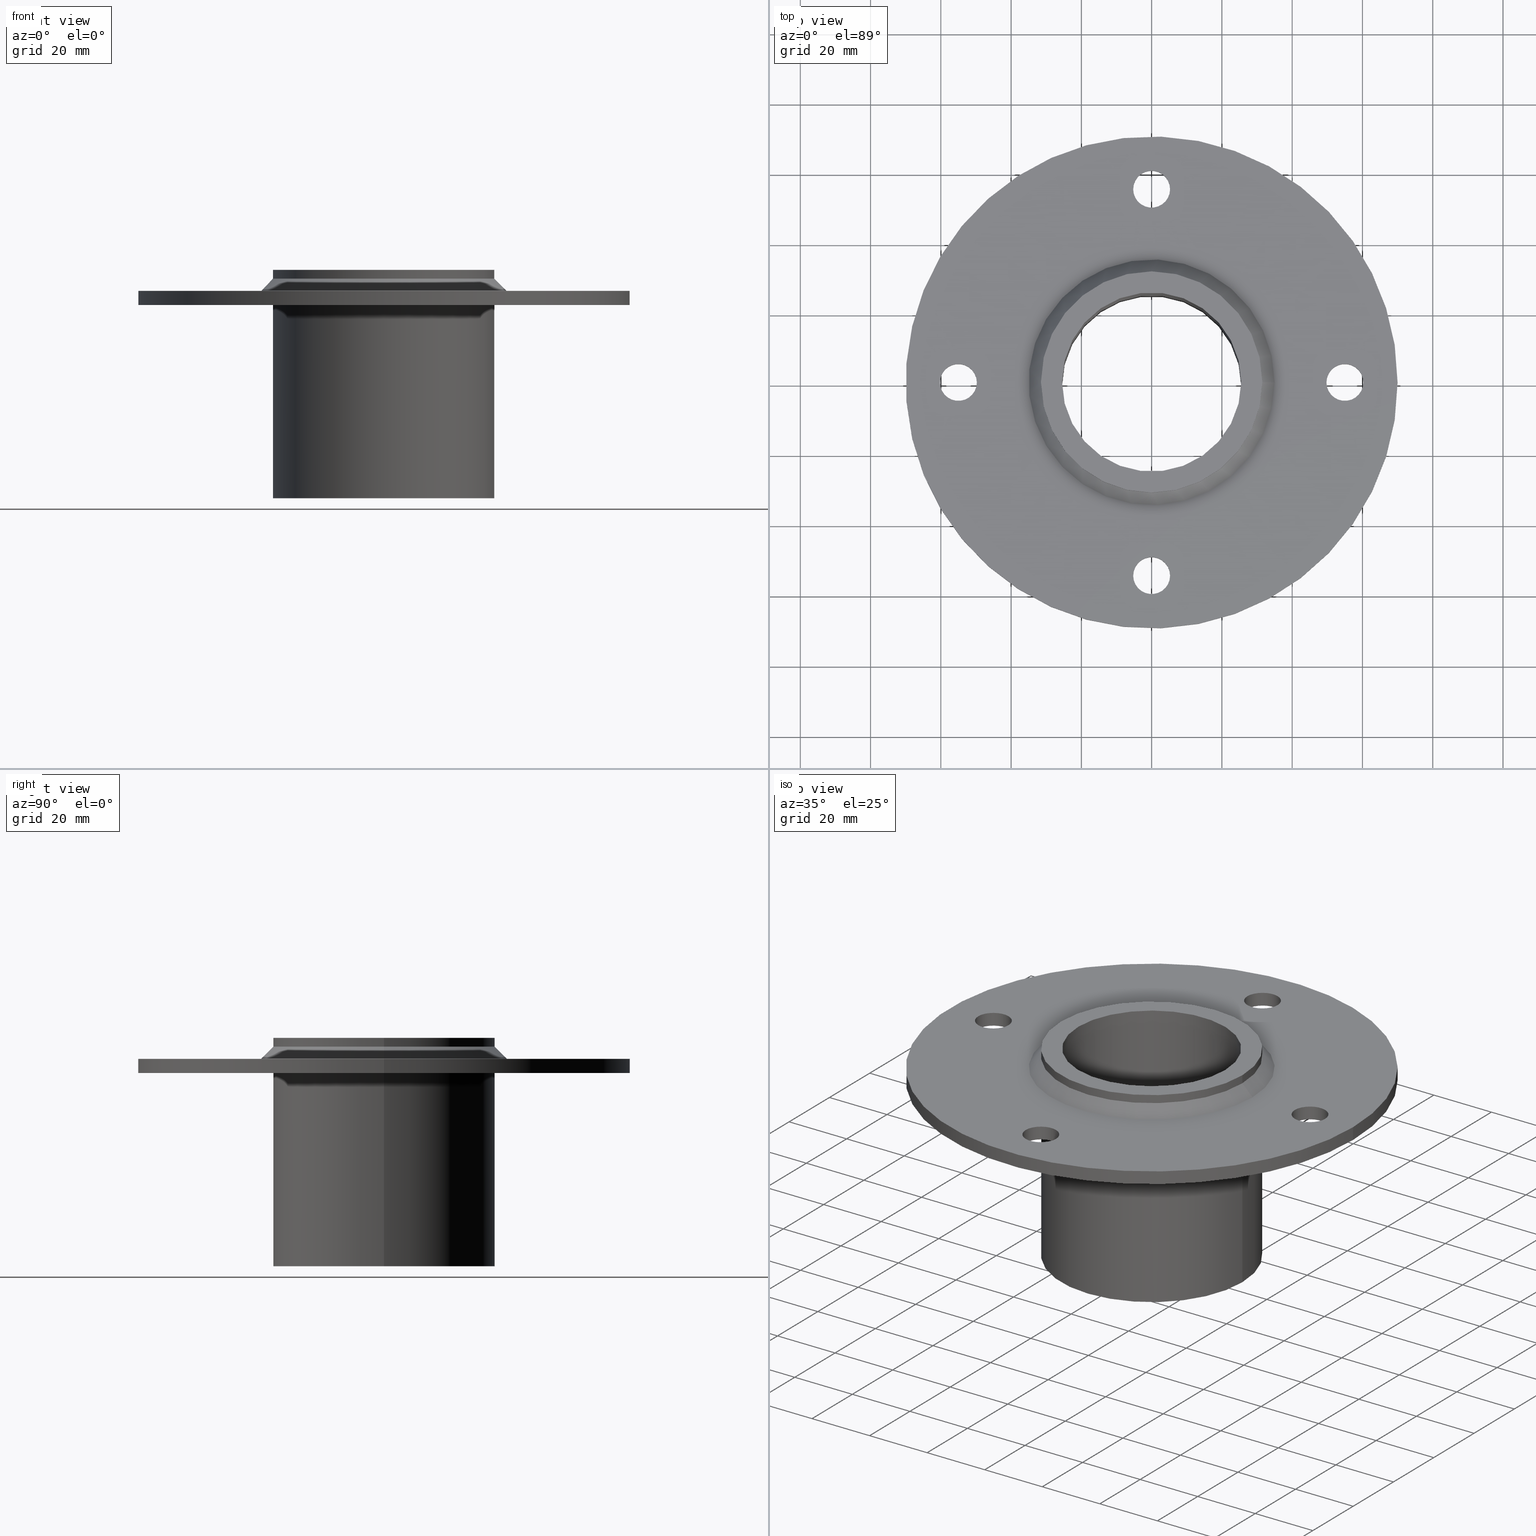
[diagram: canonical four-view strip — front | top / right | iso, engineering-drawing reading convention]
A machine part, canonical four-view strip (front | top / right | iso — engineering-drawing reading convention). The complete STEP part file that produces these views, byte-faithful:
ISO-10303-21;
HEADER;
/****************************************************************
 * Generated by software with PDElib inside                    *
 * PDElib Version v51a, created Wed 11/30/2011                  *
 * ITI Transcendata (http://www.transcendata.com/)              *
 ****************************************************************/
FILE_DESCRIPTION((''),'2;1');
FILE_NAME('C:\\Users\\se-mareng\\Desktop\\RTD\\SLF_\\step\\SLFRS50.stp','2017-02-08T07:25:08',('se-mareng'),(''),'Autodesk Inventor 2013','Autodesk Inventor 2013','');
FILE_SCHEMA(('AUTOMOTIVE_DESIGN { 1 0 10303 214 1 1 1 1 }'));
ENDSEC;
DATA;
#5=APPLICATION_CONTEXT('automotive design');
#6=APPLICATION_PROTOCOL_DEFINITION('International Standard','automotive_design',2001,#5);
#7=PRODUCT_CONTEXT('',#5,'mechanical');
#8=PRODUCT('SLFRS50_old','SLFRS50_old',$,(#7));
#9=PRODUCT_RELATED_PRODUCT_CATEGORY('part',$,(#8));
#10=PRODUCT_DEFINITION_FORMATION('',$,#8);
#11=PRODUCT_DEFINITION_CONTEXT('part definition',#5,'design');
#12=PRODUCT_DEFINITION('',$,#10,#11);
#18=(NAMED_UNIT(*)PLANE_ANGLE_UNIT()SI_UNIT($,.RADIAN.));
#19=DIMENSIONAL_EXPONENTS(0.0,0.0,0.0,0.0,0.0,0.0,0.0);
#20=PLANE_ANGLE_MEASURE_WITH_UNIT(PLANE_ANGLE_MEASURE(0.0174532925),#18);
#24=(CONVERSION_BASED_UNIT('DEGREE',#20)NAMED_UNIT(#19)PLANE_ANGLE_UNIT());
#28=(NAMED_UNIT(*)SI_UNIT($,.STERADIAN.)SOLID_ANGLE_UNIT());
#32=(LENGTH_UNIT()NAMED_UNIT(*)SI_UNIT(.MILLI.,.METRE.));
#34=UNCERTAINTY_MEASURE_WITH_UNIT(LENGTH_MEASURE(0.01),#32,'DISTANCE_ACCURACY_VALUE','');
#36=(GEOMETRIC_REPRESENTATION_CONTEXT(3)GLOBAL_UNCERTAINTY_ASSIGNED_CONTEXT((#34))GLOBAL_UNIT_ASSIGNED_CONTEXT((#24,#28,#32))REPRESENTATION_CONTEXT('None','None'));
#37=AXIS2_PLACEMENT_3D('',#38,#39,#40);
#38=CARTESIAN_POINT('',(0.0,0.0,0.0));
#39=DIRECTION('',(0.0,0.0,1.0));
#40=DIRECTION('',(1.0,0.0,0.0));
#41=SHAPE_REPRESENTATION('',(#37),#36);
#42=PRODUCT_DEFINITION_SHAPE('','',#12);
#43=SHAPE_DEFINITION_REPRESENTATION(#42,#41);
#49=(NAMED_UNIT(*)PLANE_ANGLE_UNIT()SI_UNIT($,.RADIAN.));
#50=DIMENSIONAL_EXPONENTS(0.0,0.0,0.0,0.0,0.0,0.0,0.0);
#51=PLANE_ANGLE_MEASURE_WITH_UNIT(PLANE_ANGLE_MEASURE(0.0174532925),#49);
#55=(CONVERSION_BASED_UNIT('DEGREE',#51)NAMED_UNIT(#50)PLANE_ANGLE_UNIT());
#59=(NAMED_UNIT(*)SI_UNIT($,.STERADIAN.)SOLID_ANGLE_UNIT());
#63=(LENGTH_UNIT()NAMED_UNIT(*)SI_UNIT(.MILLI.,.METRE.));
#65=UNCERTAINTY_MEASURE_WITH_UNIT(LENGTH_MEASURE(0.000001),#63,'DISTANCE_ACCURACY_VALUE','');
#67=(GEOMETRIC_REPRESENTATION_CONTEXT(3)GLOBAL_UNCERTAINTY_ASSIGNED_CONTEXT((#65))GLOBAL_UNIT_ASSIGNED_CONTEXT((#55,#59,#63))REPRESENTATION_CONTEXT('','3D'));
#68=CARTESIAN_POINT('',(-6.735557E-015,-55.0,-214.38665984174708));
#69=DIRECTION('',(0.0,0.0,1.0));
#70=DIRECTION('',(1.0,0.0,0.0));
#71=AXIS2_PLACEMENT_3D('',#68,#69,#70);
#72=CYLINDRICAL_SURFACE('',#71,5.25);
#73=CARTESIAN_POINT('',(-5.250000000000007,-55.0,-10.0));
#74=VERTEX_POINT('',#73);
#75=CARTESIAN_POINT('',(-6.735557E-015,-55.0,-10.0));
#76=DIRECTION('',(0.0,0.0,1.0));
#77=DIRECTION('',(1.0,0.0,0.0));
#78=AXIS2_PLACEMENT_3D('',#75,#76,#77);
#79=CIRCLE('',#78,5.25);
#80=EDGE_CURVE('',#74,#74,#79,.T.);
#81=ORIENTED_EDGE('',*,*,#80,.F.);
#82=EDGE_LOOP('',(#81));
#83=FACE_OUTER_BOUND('',#82,.T.);
#84=CARTESIAN_POINT('',(5.249999999999994,-55.0,-6.000000000000002));
#85=VERTEX_POINT('',#84);
#86=CARTESIAN_POINT('',(-6.735557E-015,-55.0,-6.000000000000014));
#87=DIRECTION('',(0.0,0.0,-1.0));
#88=DIRECTION('',(1.0,0.0,0.0));
#89=AXIS2_PLACEMENT_3D('',#86,#87,#88);
#90=CIRCLE('',#89,5.25);
#91=EDGE_CURVE('',#85,#85,#90,.T.);
#92=ORIENTED_EDGE('',*,*,#91,.F.);
#93=EDGE_LOOP('',(#92));
#94=FACE_BOUND('',#93,.T.);
#95=ADVANCED_FACE('',(#83,#94),#72,.F.);
#96=CARTESIAN_POINT('',(0.0,55.0,-214.38665984174708));
#97=DIRECTION('',(0.0,0.0,1.0));
#98=DIRECTION('',(1.0,0.0,0.0));
#99=AXIS2_PLACEMENT_3D('',#96,#97,#98);
#100=CYLINDRICAL_SURFACE('',#99,5.25);
#101=CARTESIAN_POINT('',(-5.25,55.0,-10.0));
#102=VERTEX_POINT('',#101);
#103=CARTESIAN_POINT('',(0.0,55.0,-10.0));
#104=DIRECTION('',(0.0,0.0,1.0));
#105=DIRECTION('',(1.0,0.0,0.0));
#106=AXIS2_PLACEMENT_3D('',#103,#104,#105);
#107=CIRCLE('',#106,5.25);
#108=EDGE_CURVE('',#102,#102,#107,.T.);
#109=ORIENTED_EDGE('',*,*,#108,.F.);
#110=EDGE_LOOP('',(#109));
#111=FACE_OUTER_BOUND('',#110,.T.);
#112=CARTESIAN_POINT('',(5.25,55.0,-6.000000000000002));
#113=VERTEX_POINT('',#112);
#114=CARTESIAN_POINT('',(0.0,55.0,-6.000000000000014));
#115=DIRECTION('',(0.0,0.0,-1.0));
#116=DIRECTION('',(1.0,0.0,0.0));
#117=AXIS2_PLACEMENT_3D('',#114,#115,#116);
#118=CIRCLE('',#117,5.25);
#119=EDGE_CURVE('',#113,#113,#118,.T.);
#120=ORIENTED_EDGE('',*,*,#119,.F.);
#121=EDGE_LOOP('',(#120));
#122=FACE_BOUND('',#121,.T.);
#123=ADVANCED_FACE('',(#111,#122),#100,.F.);
#124=CARTESIAN_POINT('',(55.0,-1.010334E-014,-214.38665984174708));
#125=DIRECTION('',(0.0,0.0,1.0));
#126=DIRECTION('',(1.0,0.0,0.0));
#127=AXIS2_PLACEMENT_3D('',#124,#125,#126);
#128=CYLINDRICAL_SURFACE('',#127,5.25);
#129=CARTESIAN_POINT('',(49.75,-1.074628E-014,-10.0));
#130=VERTEX_POINT('',#129);
#131=CARTESIAN_POINT('',(55.0,-1.010334E-014,-10.0));
#132=DIRECTION('',(0.0,0.0,1.0));
#133=DIRECTION('',(1.0,0.0,0.0));
#134=AXIS2_PLACEMENT_3D('',#131,#132,#133);
#135=CIRCLE('',#134,5.25);
#136=EDGE_CURVE('',#130,#130,#135,.T.);
#137=ORIENTED_EDGE('',*,*,#136,.F.);
#138=EDGE_LOOP('',(#137));
#139=FACE_OUTER_BOUND('',#138,.T.);
#140=CARTESIAN_POINT('',(60.25,-1.010334E-014,-6.000000000000002));
#141=VERTEX_POINT('',#140);
#142=CARTESIAN_POINT('',(55.0,-1.010334E-014,-6.000000000000014));
#143=DIRECTION('',(0.0,0.0,-1.0));
#144=DIRECTION('',(1.0,0.0,0.0));
#145=AXIS2_PLACEMENT_3D('',#142,#143,#144);
#146=CIRCLE('',#145,5.25);
#147=EDGE_CURVE('',#141,#141,#146,.T.);
#148=ORIENTED_EDGE('',*,*,#147,.F.);
#149=EDGE_LOOP('',(#148));
#150=FACE_BOUND('',#149,.T.);
#151=ADVANCED_FACE('',(#139,#150),#128,.F.);
#152=CARTESIAN_POINT('',(-55.0,3.367779E-015,-214.38665984174708));
#153=DIRECTION('',(0.0,0.0,1.0));
#154=DIRECTION('',(1.0,0.0,0.0));
#155=AXIS2_PLACEMENT_3D('',#152,#153,#154);
#156=CYLINDRICAL_SURFACE('',#155,5.25);
#157=CARTESIAN_POINT('',(-60.25,2.724839E-015,-10.0));
#158=VERTEX_POINT('',#157);
#159=CARTESIAN_POINT('',(-55.0,3.367779E-015,-10.0));
#160=DIRECTION('',(0.0,0.0,1.0));
#161=DIRECTION('',(1.0,0.0,0.0));
#162=AXIS2_PLACEMENT_3D('',#159,#160,#161);
#163=CIRCLE('',#162,5.25);
#164=EDGE_CURVE('',#158,#158,#163,.T.);
#165=ORIENTED_EDGE('',*,*,#164,.F.);
#166=EDGE_LOOP('',(#165));
#167=FACE_OUTER_BOUND('',#166,.T.);
#168=CARTESIAN_POINT('',(-49.75,3.367779E-015,-6.000000000000002));
#169=VERTEX_POINT('',#168);
#170=CARTESIAN_POINT('',(-55.0,3.367779E-015,-6.000000000000014));
#171=DIRECTION('',(0.0,0.0,-1.0));
#172=DIRECTION('',(1.0,0.0,0.0));
#173=AXIS2_PLACEMENT_3D('',#170,#171,#172);
#174=CIRCLE('',#173,5.25);
#175=EDGE_CURVE('',#169,#169,#174,.T.);
#176=ORIENTED_EDGE('',*,*,#175,.F.);
#177=EDGE_LOOP('',(#176));
#178=FACE_BOUND('',#177,.T.);
#179=ADVANCED_FACE('',(#167,#178),#156,.F.);
#180=CARTESIAN_POINT('',(0.0,0.0,-4.250000000000002));
#181=DIRECTION('',(0.0,0.0,-1.0));
#182=DIRECTION('',(-1.0,0.0,0.0));
#183=AXIS2_PLACEMENT_3D('',#180,#181,#182);
#184=CONICAL_SURFACE('',#183,33.25,44.999999999999986);
#185=CARTESIAN_POINT('',(35.000000000000014,4.286264E-015,-6.000000000000002));
#186=VERTEX_POINT('',#185);
#187=CARTESIAN_POINT('',(0.0,0.0,-6.000000000000002));
#188=DIRECTION('',(0.0,0.0,1.0));
#189=DIRECTION('',(-1.0,0.0,0.0));
#190=AXIS2_PLACEMENT_3D('',#187,#188,#189);
#191=CIRCLE('',#190,35.000000000000014);
#192=EDGE_CURVE('',#186,#186,#191,.T.);
#193=ORIENTED_EDGE('',*,*,#192,.T.);
#194=EDGE_LOOP('',(#193));
#195=FACE_OUTER_BOUND('',#194,.T.);
#196=CARTESIAN_POINT('',(31.500000000000014,-3.857637E-015,-2.500000000000002));
#197=VERTEX_POINT('',#196);
#198=CARTESIAN_POINT('',(0.0,0.0,-2.500000000000002));
#199=DIRECTION('',(0.0,0.0,-1.0));
#200=DIRECTION('',(-1.0,0.0,0.0));
#201=AXIS2_PLACEMENT_3D('',#198,#199,#200);
#202=CIRCLE('',#201,31.500000000000014);
#203=EDGE_CURVE('',#197,#197,#202,.T.);
#204=ORIENTED_EDGE('',*,*,#203,.T.);
#205=EDGE_LOOP('',(#204));
#206=FACE_BOUND('',#205,.T.);
#207=ADVANCED_FACE('',(#195,#206),#184,.T.);
#208=CARTESIAN_POINT('',(-4.097914E-015,-1.691768E-015,-6.000000000000002));
#209=DIRECTION('',(0.0,0.0,1.0));
#210=DIRECTION('',(1.0,0.0,0.0));
#211=AXIS2_PLACEMENT_3D('',#208,#209,#210);
#212=PLANE('',#211);
#213=CARTESIAN_POINT('',(70.0,8.572528E-015,-6.000000000000002));
#214=VERTEX_POINT('',#213);
#215=CARTESIAN_POINT('',(0.0,0.0,-6.000000000000002));
#216=DIRECTION('',(0.0,0.0,1.0));
#217=DIRECTION('',(-1.0,0.0,0.0));
#218=AXIS2_PLACEMENT_3D('',#215,#216,#217);
#219=CIRCLE('',#218,70.0);
#220=EDGE_CURVE('',#214,#214,#219,.T.);
#221=ORIENTED_EDGE('',*,*,#220,.T.);
#222=EDGE_LOOP('',(#221));
#223=FACE_OUTER_BOUND('',#222,.T.);
#224=ORIENTED_EDGE('',*,*,#91,.T.);
#225=EDGE_LOOP('',(#224));
#226=FACE_BOUND('',#225,.T.);
#227=ORIENTED_EDGE('',*,*,#119,.T.);
#228=EDGE_LOOP('',(#227));
#229=FACE_BOUND('',#228,.T.);
#230=ORIENTED_EDGE('',*,*,#147,.T.);
#231=EDGE_LOOP('',(#230));
#232=FACE_BOUND('',#231,.T.);
#233=ORIENTED_EDGE('',*,*,#175,.T.);
#234=EDGE_LOOP('',(#233));
#235=FACE_BOUND('',#234,.T.);
#236=ORIENTED_EDGE('',*,*,#192,.F.);
#237=EDGE_LOOP('',(#236));
#238=FACE_BOUND('',#237,.T.);
#239=ADVANCED_FACE('',(#223,#226,#229,#232,#235,#238),#212,.T.);
#240=CARTESIAN_POINT('',(0.0,0.0,0.0));
#241=DIRECTION('',(0.0,0.0,-1.0));
#242=DIRECTION('',(-1.0,0.0,0.0));
#243=AXIS2_PLACEMENT_3D('',#240,#241,#242);
#244=CYLINDRICAL_SURFACE('',#243,31.500000000000014);
#245=CARTESIAN_POINT('',(31.500000000000014,3.857637E-015,0.0));
#246=VERTEX_POINT('',#245);
#247=CARTESIAN_POINT('',(0.0,0.0,0.0));
#248=DIRECTION('',(0.0,0.0,-1.0));
#249=DIRECTION('',(-1.0,0.0,0.0));
#250=AXIS2_PLACEMENT_3D('',#247,#248,#249);
#251=CIRCLE('',#250,31.500000000000014);
#252=EDGE_CURVE('',#246,#246,#251,.T.);
#253=ORIENTED_EDGE('',*,*,#252,.T.);
#254=EDGE_LOOP('',(#253));
#255=FACE_OUTER_BOUND('',#254,.T.);
#256=ORIENTED_EDGE('',*,*,#203,.F.);
#257=EDGE_LOOP('',(#256));
#258=FACE_BOUND('',#257,.T.);
#259=ADVANCED_FACE('',(#255,#258),#244,.T.);
#260=CARTESIAN_POINT('',(-4.097914E-015,-1.691768E-015,-10.0));
#261=DIRECTION('',(0.0,0.0,1.0));
#262=DIRECTION('',(1.0,0.0,0.0));
#263=AXIS2_PLACEMENT_3D('',#260,#261,#262);
#264=PLANE('',#263);
#265=CARTESIAN_POINT('',(70.0,8.572528E-015,-10.0));
#266=VERTEX_POINT('',#265);
#267=CARTESIAN_POINT('',(0.0,0.0,-10.0));
#268=DIRECTION('',(0.0,0.0,-1.0));
#269=DIRECTION('',(-1.0,0.0,0.0));
#270=AXIS2_PLACEMENT_3D('',#267,#268,#269);
#271=CIRCLE('',#270,70.0);
#272=EDGE_CURVE('',#266,#266,#271,.T.);
#273=ORIENTED_EDGE('',*,*,#272,.T.);
#274=EDGE_LOOP('',(#273));
#275=FACE_OUTER_BOUND('',#274,.T.);
#276=ORIENTED_EDGE('',*,*,#80,.T.);
#277=EDGE_LOOP('',(#276));
#278=FACE_BOUND('',#277,.T.);
#279=ORIENTED_EDGE('',*,*,#108,.T.);
#280=EDGE_LOOP('',(#279));
#281=FACE_BOUND('',#280,.T.);
#282=ORIENTED_EDGE('',*,*,#136,.T.);
#283=EDGE_LOOP('',(#282));
#284=FACE_BOUND('',#283,.T.);
#285=ORIENTED_EDGE('',*,*,#164,.T.);
#286=EDGE_LOOP('',(#285));
#287=FACE_BOUND('',#286,.T.);
#288=CARTESIAN_POINT('',(31.500000000000014,3.857637E-015,-10.0));
#289=VERTEX_POINT('',#288);
#290=CARTESIAN_POINT('',(0.0,0.0,-10.0));
#291=DIRECTION('',(0.0,0.0,-1.0));
#292=DIRECTION('',(-1.0,0.0,0.0));
#293=AXIS2_PLACEMENT_3D('',#290,#291,#292);
#294=CIRCLE('',#293,31.500000000000014);
#295=EDGE_CURVE('',#289,#289,#294,.T.);
#296=ORIENTED_EDGE('',*,*,#295,.F.);
#297=EDGE_LOOP('',(#296));
#298=FACE_BOUND('',#297,.T.);
#299=ADVANCED_FACE('',(#275,#278,#281,#284,#287,#298),#264,.F.);
#300=CARTESIAN_POINT('',(0.0,0.0,-8.0));
#301=DIRECTION('',(0.0,0.0,1.0));
#302=DIRECTION('',(-1.0,0.0,0.0));
#303=AXIS2_PLACEMENT_3D('',#300,#301,#302);
#304=CYLINDRICAL_SURFACE('',#303,70.0);
#305=ORIENTED_EDGE('',*,*,#272,.F.);
#306=EDGE_LOOP('',(#305));
#307=FACE_OUTER_BOUND('',#306,.T.);
#308=ORIENTED_EDGE('',*,*,#220,.F.);
#309=EDGE_LOOP('',(#308));
#310=FACE_BOUND('',#309,.T.);
#311=ADVANCED_FACE('',(#307,#310),#304,.T.);
#312=CARTESIAN_POINT('',(0.0,0.0,-110.28599185753379));
#313=DIRECTION('',(0.0,0.0,1.0));
#314=DIRECTION('',(1.0,0.0,0.0));
#315=AXIS2_PLACEMENT_3D('',#312,#313,#314);
#316=CYLINDRICAL_SURFACE('',#315,25.500000000000007);
#317=CARTESIAN_POINT('',(-25.500000000000007,-3.122849E-015,-65.0));
#318=VERTEX_POINT('',#317);
#319=CARTESIAN_POINT('',(0.0,0.0,-65.0));
#320=DIRECTION('',(0.0,0.0,1.0));
#321=DIRECTION('',(1.0,0.0,0.0));
#322=AXIS2_PLACEMENT_3D('',#319,#320,#321);
#323=CIRCLE('',#322,25.500000000000007);
#324=EDGE_CURVE('',#318,#318,#323,.T.);
#325=ORIENTED_EDGE('',*,*,#324,.F.);
#326=EDGE_LOOP('',(#325));
#327=FACE_OUTER_BOUND('',#326,.T.);
#328=CARTESIAN_POINT('',(25.500000000000007,0.0,0.0));
#329=VERTEX_POINT('',#328);
#330=CARTESIAN_POINT('',(0.0,0.0,0.0));
#331=DIRECTION('',(0.0,0.0,-1.0));
#332=DIRECTION('',(1.0,0.0,0.0));
#333=AXIS2_PLACEMENT_3D('',#330,#331,#332);
#334=CIRCLE('',#333,25.500000000000007);
#335=EDGE_CURVE('',#329,#329,#334,.T.);
#336=ORIENTED_EDGE('',*,*,#335,.F.);
#337=EDGE_LOOP('',(#336));
#338=FACE_BOUND('',#337,.T.);
#339=ADVANCED_FACE('',(#327,#338),#316,.F.);
#340=CARTESIAN_POINT('',(0.0,0.0,0.0));
#341=DIRECTION('',(0.0,0.0,-1.0));
#342=DIRECTION('',(-1.0,0.0,0.0));
#343=AXIS2_PLACEMENT_3D('',#340,#341,#342);
#344=CYLINDRICAL_SURFACE('',#343,31.500000000000014);
#345=ORIENTED_EDGE('',*,*,#295,.T.);
#346=EDGE_LOOP('',(#345));
#347=FACE_OUTER_BOUND('',#346,.T.);
#348=CARTESIAN_POINT('',(31.500000000000014,3.857637E-015,-65.0));
#349=VERTEX_POINT('',#348);
#350=CARTESIAN_POINT('',(0.0,0.0,-65.0));
#351=DIRECTION('',(0.0,0.0,-1.0));
#352=DIRECTION('',(-1.0,0.0,0.0));
#353=AXIS2_PLACEMENT_3D('',#350,#351,#352);
#354=CIRCLE('',#353,31.500000000000014);
#355=EDGE_CURVE('',#349,#349,#354,.T.);
#356=ORIENTED_EDGE('',*,*,#355,.F.);
#357=EDGE_LOOP('',(#356));
#358=FACE_BOUND('',#357,.T.);
#359=ADVANCED_FACE('',(#347,#358),#344,.T.);
#360=CARTESIAN_POINT('',(-2.201212E-015,0.0,-65.0));
#361=DIRECTION('',(0.0,0.0,1.0));
#362=DIRECTION('',(1.0,0.0,0.0));
#363=AXIS2_PLACEMENT_3D('',#360,#361,#362);
#364=PLANE('',#363);
#365=ORIENTED_EDGE('',*,*,#355,.T.);
#366=EDGE_LOOP('',(#365));
#367=FACE_OUTER_BOUND('',#366,.T.);
#368=ORIENTED_EDGE('',*,*,#324,.T.);
#369=EDGE_LOOP('',(#368));
#370=FACE_BOUND('',#369,.T.);
#371=ADVANCED_FACE('',(#367,#370),#364,.F.);
#372=CARTESIAN_POINT('',(-2.201212E-015,0.0,0.0));
#373=DIRECTION('',(0.0,0.0,1.0));
#374=DIRECTION('',(1.0,0.0,0.0));
#375=AXIS2_PLACEMENT_3D('',#372,#373,#374);
#376=PLANE('',#375);
#377=ORIENTED_EDGE('',*,*,#252,.F.);
#378=EDGE_LOOP('',(#377));
#379=FACE_OUTER_BOUND('',#378,.T.);
#380=ORIENTED_EDGE('',*,*,#335,.T.);
#381=EDGE_LOOP('',(#380));
#382=FACE_BOUND('',#381,.T.);
#383=ADVANCED_FACE('',(#379,#382),#376,.T.);
#384=CLOSED_SHELL('',(#95,#123,#151,#179,#207,#239,#259,#299,#311,#339,#359,#371,#383));
#385=MANIFOLD_SOLID_BREP('Solid1',#384);
#386=COLOUR_RGB('',0.800000011920929,0.796078443527222,0.701960802078247);
#387=FILL_AREA_STYLE_COLOUR('',#386);
#388=FILL_AREA_STYLE('',(#387));
#389=SURFACE_STYLE_FILL_AREA(#388);
#390=SURFACE_SIDE_STYLE('',(#389));
#391=SURFACE_STYLE_USAGE(.BOTH.,#390);
#392=PRESENTATION_STYLE_ASSIGNMENT((#391));
#393=STYLED_ITEM('',(#392,#401),#385);
#394=MECHANICAL_DESIGN_GEOMETRIC_PRESENTATION_REPRESENTATION('',(#393),#67);
#395=COLOUR_RGB('204,203,179',0.800000011920929,0.796078443527222,0.701960802078247);
#396=FILL_AREA_STYLE_COLOUR('204,203,179',#395);
#397=FILL_AREA_STYLE('204,203,179',(#396));
#398=SURFACE_STYLE_FILL_AREA(#397);
#399=SURFACE_SIDE_STYLE('204,203,179',(#398));
#400=SURFACE_STYLE_USAGE(.BOTH.,#399);
#401=PRESENTATION_STYLE_ASSIGNMENT((#400));
#402=ADVANCED_BREP_SHAPE_REPRESENTATION('ABSR',(#385),#36);
#403=SHAPE_REPRESENTATION_RELATIONSHIP('SRR','None',#402,#41);
ENDSEC;
END-ISO-10303-21;
